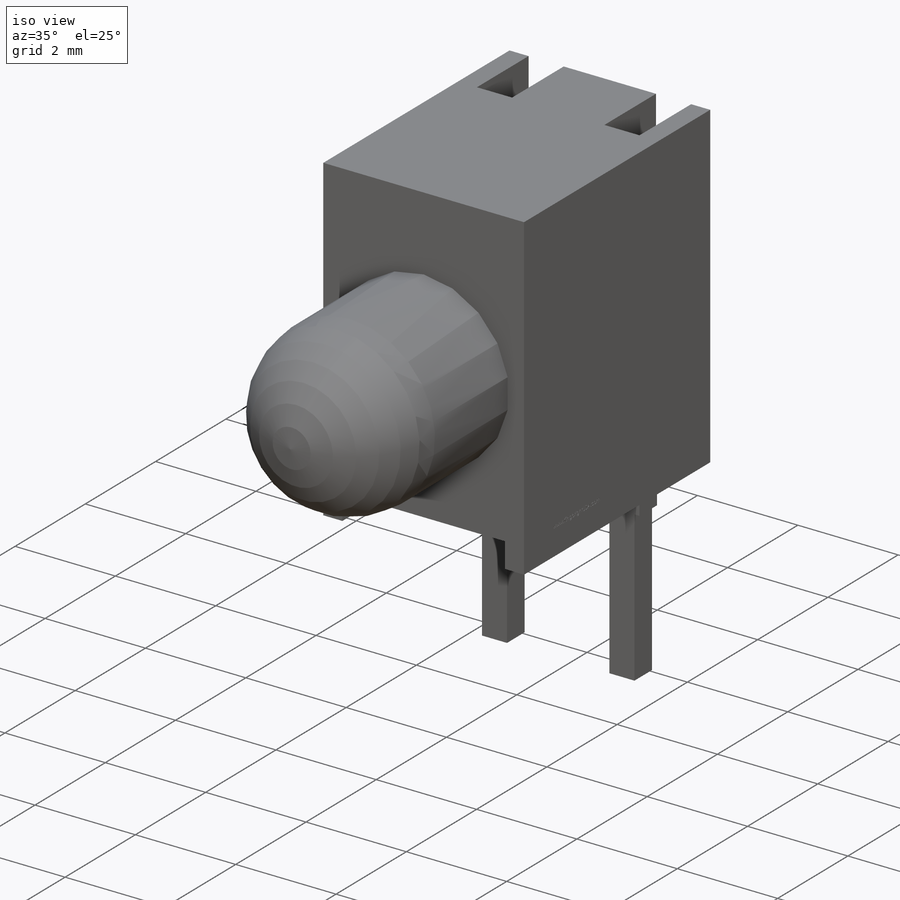
[diagram: iso view]
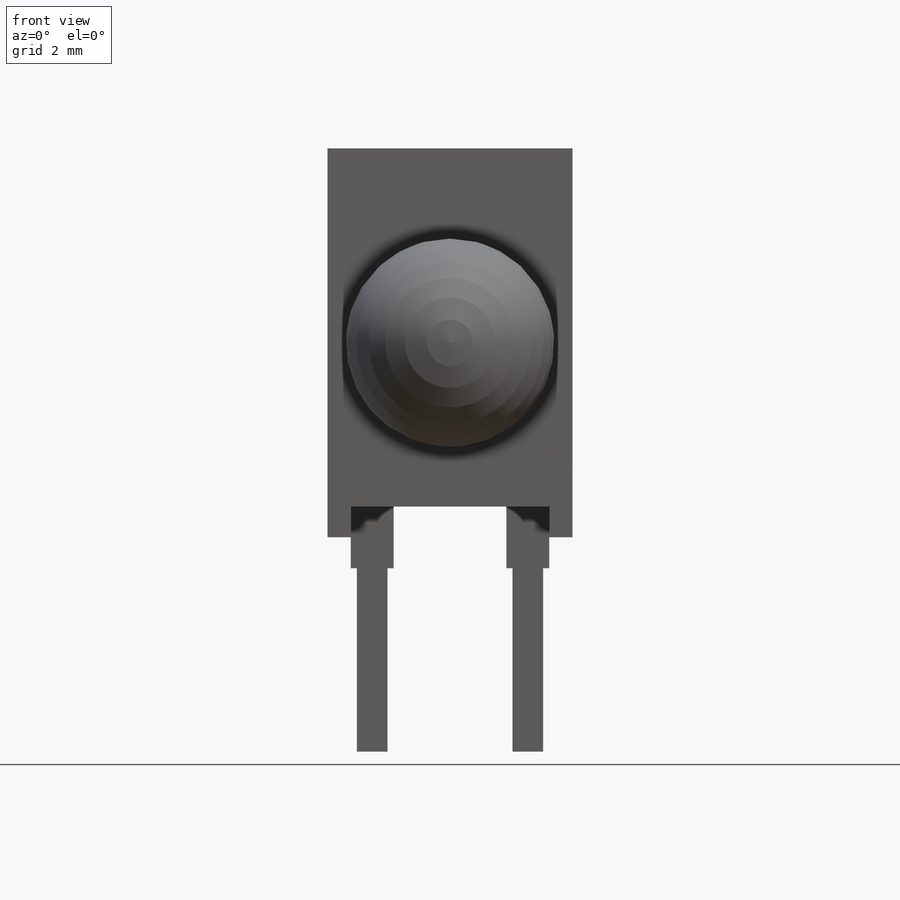
[diagram: front view]
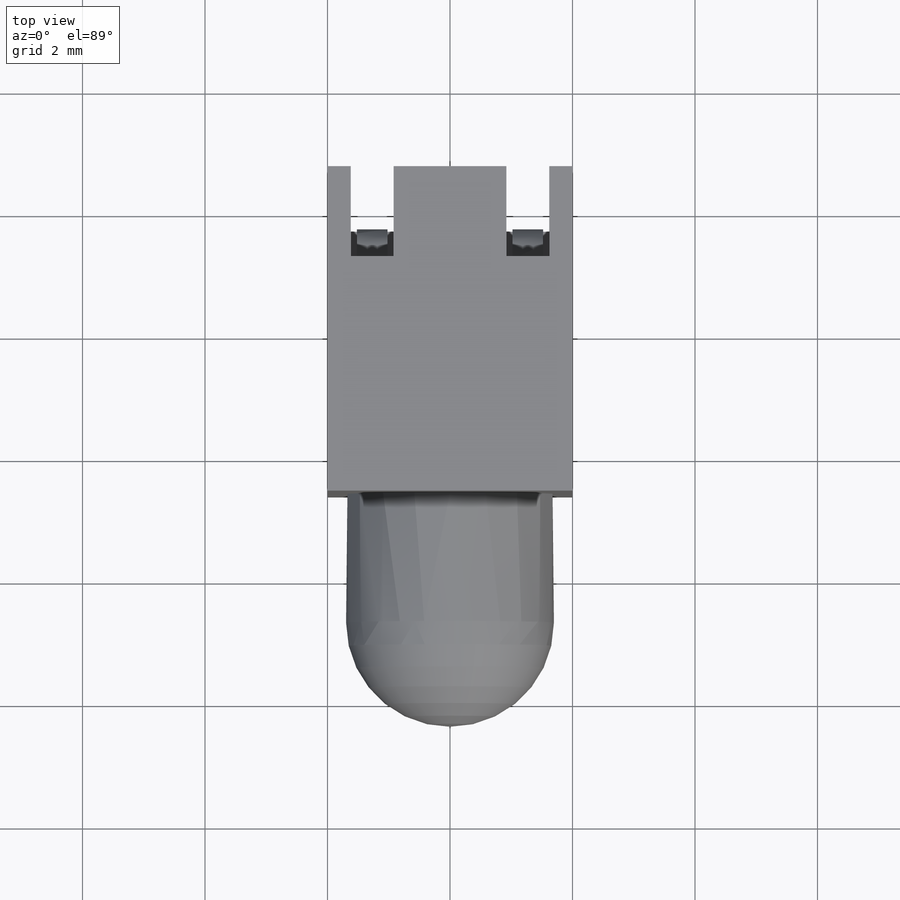
[diagram: top view]
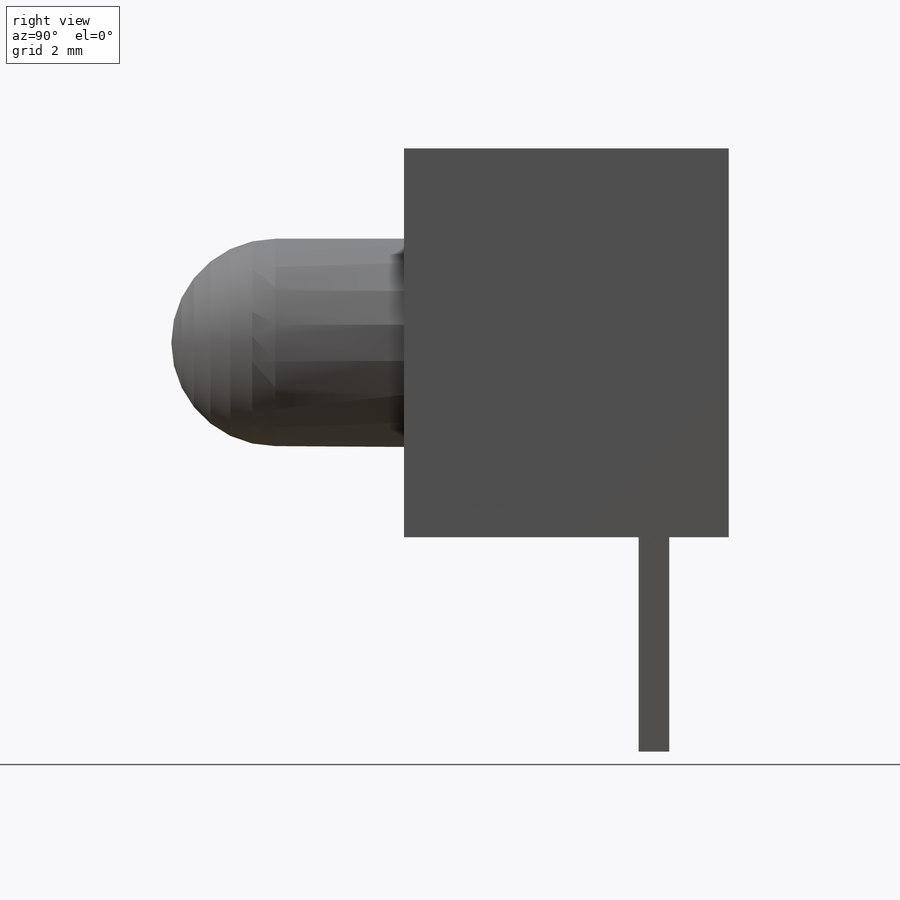
[diagram: right view]
SOLIDWORKS PART (.sldprt)
format: sldprt  version: not decoded by parser v0  size: 701,440 bytes
history: native  units: mm
features: sketch x9, extrude x4, cut_extrude x4, material x1, revolve x1, fillet x1 (+11 scaffold rows collapsed)
feature tree (31):
  scaffold x11  (default folders/planes/origin — collapsed)
  material  "Material <not specified>"
  sketch  "Sketch1"  dims[c1.D4=3.4mm c1.D1=5.3mm c1.D2=6.35mm c1.D3=3.17mm c1.D5=3.8mm c2.D3=0.5mm]
  extrude  "Extrude1"  Depth=4mm
  revolve  "Revolve1"  [1 undecoded]
  sketch  "Sketch1<3>"  dims[D1=360.0deg]
  sketch  "Sketch3"  dims[c1.D1=0.5mm c1.D2=0.5mm c1.D3=0.5mm c1.D4=0.5mm c1.D5=4.6mm c2.D5=90.0deg c3.D5=4.08mm c3.D6=2.54mm c3.D7=1.7mm c4.D6=2.54mm c4.D7=0.7mm]
  cut_extrude  "Cut-Extrude1"  [1 undecoded]
  extrude  "Extrude3"  [1 undecoded]
  sketch  "Sketch3<4>"  dims[D1=3.5mm]
  cut_extrude  "Cut-Extrude2"  [1 undecoded]
  sketch  "Sketch3<5>"
  cut_extrude  "Cut-Extrude4"  [1 undecoded]
  sketch  "Sketch1<4>"  dims[D1=3.24mm]
  extrude  "Extrude5"  [1 undecoded]
  sketch  "Sketch3<6>"
  fillet  "Fillet1"  Radius=0.5mm
  extrude  "Extrude10"  [1 undecoded]
  sketch  "Sketch3<7>"  dims[D1=1.01mm]
  sketch  "Sketch4"  dims[D1=~2.426674mm]
  cut_extrude  "Cut-Extrude5"  Depth=0.01mm
decode coverage: 10 of 19 modeling features carry decoded parameters
note: ~ marks probable driven/reference dimensions
note: 7 parameter values undecoded
summary: no parameter record found for 7 features
note: suppression state not decoded; provenance and decode notes live in map.json
